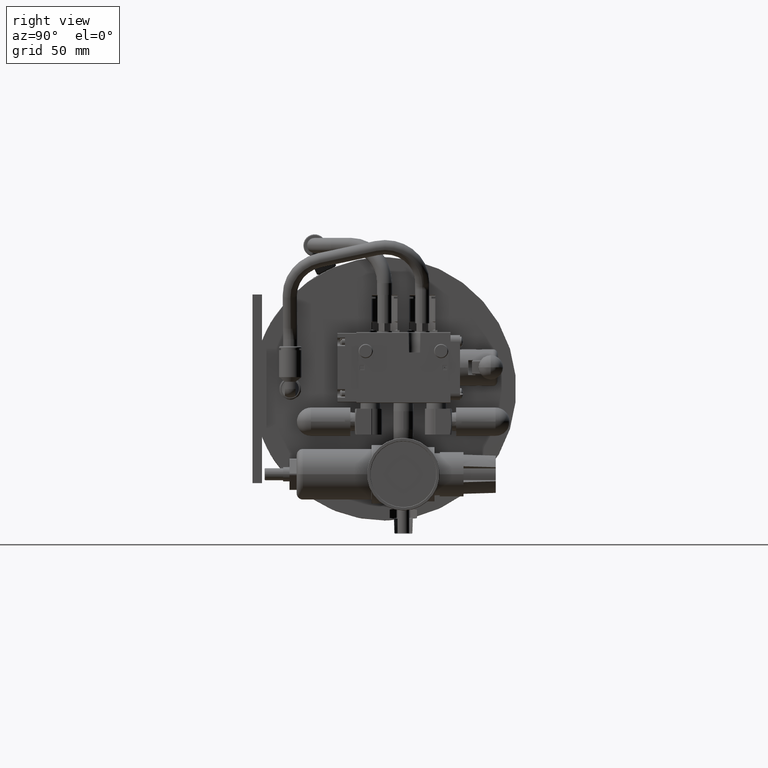
[diagram: clean part render]
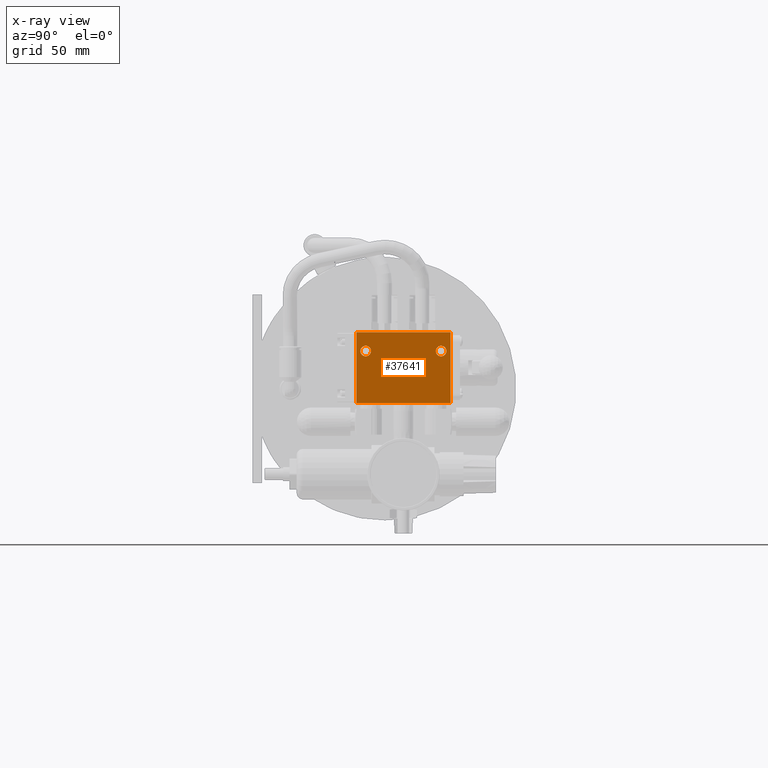
[diagram: x-ray — body ghosted, one internal face saturated and labeled with its STEP entity id]
A machine part, right view, then the same camera in x-ray: the body is ghosted and one INTERNAL B-rep face — a face not visible from any outside direction — is saturated and labeled: STEP entity #37641.
In plain terms, the highlighted planar face has unit normal (1, 0, 0).
Its self-contained STEP definition (entity closure, byte-faithful):
#37438=CARTESIAN_POINT('',(1.505204E2,1.234313E2,-3.81E1));
#37439=CARTESIAN_POINT('',(1.505204E2,1.234344394300E2,-3.767295777419E1));
#37440=CARTESIAN_POINT('',(1.505204E2,1.235727286180E2,-3.687208523860E1));
#37441=CARTESIAN_POINT('',(1.505204E2,1.242070001902E2,-3.576025609678E1));
#37442=CARTESIAN_POINT('',(1.505204E2,1.251756891326E2,-3.494837487599E1));
#37443=CARTESIAN_POINT('',(1.505204E2,1.263660717104E2,-3.451330839834E1));
#37444=CARTESIAN_POINT('',(1.505204E2,1.276329035813E2,-3.451313603785E1));
#37445=CARTESIAN_POINT('',(1.505204E2,1.288234033173E2,-3.494782733448E1));
#37446=CARTESIAN_POINT('',(1.505204E2,1.297923491658E2,-3.575954907939E1));
#37447=CARTESIAN_POINT('',(1.505204E2,1.304269032013E2,-3.687082677093E1));
#37448=CARTESIAN_POINT('',(1.505204E2,1.305654312766E2,-3.767243068959E1));
#37449=CARTESIAN_POINT('',(1.505204E2,1.305687E2,-3.81E1));
#37451=CARTESIAN_POINT('',(1.505204E2,1.305687E2,-3.81E1));
#37452=CARTESIAN_POINT('',(1.505204E2,1.305655605700E2,-3.852704222581E1));
#37453=CARTESIAN_POINT('',(1.505204E2,1.304272713820E2,-3.932791476140E1));
#37454=CARTESIAN_POINT('',(1.505204E2,1.297929998098E2,-4.043974390322E1));
#37455=CARTESIAN_POINT('',(1.505204E2,1.288243108674E2,-4.125162512401E1));
#37456=CARTESIAN_POINT('',(1.505204E2,1.276339282896E2,-4.168669160166E1));
#37457=CARTESIAN_POINT('',(1.505204E2,1.263670964187E2,-4.168686396215E1));
#37458=CARTESIAN_POINT('',(1.505204E2,1.251765966827E2,-4.125217266552E1));
#37459=CARTESIAN_POINT('',(1.505204E2,1.242076508342E2,-4.044045092061E1));
#37460=CARTESIAN_POINT('',(1.505204E2,1.235730967987E2,-3.932917322907E1));
#37461=CARTESIAN_POINT('',(1.505204E2,1.234345687234E2,-3.852756931041E1));
#37462=CARTESIAN_POINT('',(1.505204E2,1.234313E2,-3.81E1));
#37464=CARTESIAN_POINT('',(1.505204E2,7.26313E1,-3.81E1));
#37465=CARTESIAN_POINT('',(1.505204E2,7.263443943001E1,-3.767295777429E1));
#37466=CARTESIAN_POINT('',(1.505204E2,7.277272861791E1,-3.687208523882E1));
#37467=CARTESIAN_POINT('',(1.505204E2,7.340700019017E1,-3.576025609683E1));
#37468=CARTESIAN_POINT('',(1.505204E2,7.437568913254E1,-3.494837487602E1));
#37469=CARTESIAN_POINT('',(1.505204E2,7.556607171033E1,-3.451330839834E1));
#37470=CARTESIAN_POINT('',(1.505204E2,7.683290358128E1,-3.451313603784E1));
#37471=CARTESIAN_POINT('',(1.505204E2,7.802340331742E1,-3.494782733452E1));
#37472=CARTESIAN_POINT('',(1.505204E2,7.899234916581E1,-3.575954907944E1));
#37473=CARTESIAN_POINT('',(1.505204E2,7.962690320136E1,-3.687082677115E1));
#37474=CARTESIAN_POINT('',(1.505204E2,7.976543127668E1,-3.767243068968E1));
#37475=CARTESIAN_POINT('',(1.505204E2,7.97687E1,-3.81E1));
#37477=CARTESIAN_POINT('',(1.505204E2,7.97687E1,-3.81E1));
#37478=CARTESIAN_POINT('',(1.505204E2,7.976556056999E1,-3.852704222571E1));
#37479=CARTESIAN_POINT('',(1.505204E2,7.962727138209E1,-3.932791476118E1));
#37480=CARTESIAN_POINT('',(1.505204E2,7.899299980983E1,-4.043974390317E1));
#37481=CARTESIAN_POINT('',(1.505204E2,7.802431086746E1,-4.125162512398E1));
#37482=CARTESIAN_POINT('',(1.505204E2,7.683392828967E1,-4.168669160166E1));
#37483=CARTESIAN_POINT('',(1.505204E2,7.556709641872E1,-4.168686396216E1));
#37484=CARTESIAN_POINT('',(1.505204E2,7.437659668258E1,-4.125217266548E1));
#37485=CARTESIAN_POINT('',(1.505204E2,7.340765083419E1,-4.044045092056E1));
#37486=CARTESIAN_POINT('',(1.505204E2,7.277309679864E1,-3.932917322885E1));
#37487=CARTESIAN_POINT('',(1.505204E2,7.263456872332E1,-3.852756931032E1));
#37488=CARTESIAN_POINT('',(1.505204E2,7.26313E1,-3.81E1));
#37490=DIRECTION('',(0.E0,1.E0,0.E0));
#37491=VECTOR('',#37490,6.35E1);
#37492=CARTESIAN_POINT('',(1.505204E2,6.985E1,-7.3152E1));
#37493=LINE('',#37492,#37491);
#37494=DIRECTION('',(0.E0,0.E0,-1.E0));
#37495=VECTOR('',#37494,4.7752E1);
#37496=CARTESIAN_POINT('',(1.505204E2,6.985E1,-2.54E1));
#37497=LINE('',#37496,#37495);
#37502=DIRECTION('',(0.E0,-1.E0,0.E0));
#37503=VECTOR('',#37502,6.35E1);
#37504=CARTESIAN_POINT('',(1.505204E2,1.3335E2,-2.54E1));
#37505=LINE('',#37504,#37503);
#37510=DIRECTION('',(0.E0,0.E0,1.E0));
#37511=VECTOR('',#37510,4.7752E1);
#37512=CARTESIAN_POINT('',(1.505204E2,1.3335E2,-7.3152E1));
#37513=LINE('',#37512,#37511);
#37590=VERTEX_POINT('',#37449);
#37591=VERTEX_POINT('',#37438);
#37592=VERTEX_POINT('',#37475);
#37593=VERTEX_POINT('',#37464);
#37598=CARTESIAN_POINT('',(1.505204E2,6.985E1,-7.3152E1));
#37599=CARTESIAN_POINT('',(1.505204E2,1.3335E2,-7.3152E1));
#37600=VERTEX_POINT('',#37598);
#37601=VERTEX_POINT('',#37599);
#37602=CARTESIAN_POINT('',(1.505204E2,1.3335E2,-2.54E1));
#37603=VERTEX_POINT('',#37602);
#37604=CARTESIAN_POINT('',(1.505204E2,6.985E1,-2.54E1));
#37605=VERTEX_POINT('',#37604);
#37614=CARTESIAN_POINT('',(1.505204E2,1.016E2,-4.9276E1));
#37615=DIRECTION('',(1.E0,0.E0,0.E0));
#37616=DIRECTION('',(0.E0,-1.E0,0.E0));
#37617=AXIS2_PLACEMENT_3D('',#37614,#37615,#37616);
#37618=PLANE('',#37617);
#37620=ORIENTED_EDGE('',*,*,#37619,.T.);
#37622=ORIENTED_EDGE('',*,*,#37621,.T.);
#37624=ORIENTED_EDGE('',*,*,#37623,.T.);
#37626=ORIENTED_EDGE('',*,*,#37625,.T.);
#37627=EDGE_LOOP('',(#37620,#37622,#37624,#37626));
#37628=FACE_OUTER_BOUND('',#37627,.F.);
#37630=ORIENTED_EDGE('',*,*,#37629,.T.);
#37632=ORIENTED_EDGE('',*,*,#37631,.T.);
#37633=EDGE_LOOP('',(#37630,#37632));
#37634=FACE_BOUND('',#37633,.F.);
#37636=ORIENTED_EDGE('',*,*,#37635,.T.);
#37638=ORIENTED_EDGE('',*,*,#37637,.T.);
#37639=EDGE_LOOP('',(#37636,#37638));
#37640=FACE_BOUND('',#37639,.F.);
#37641=ADVANCED_FACE('',(#37628,#37634,#37640),#37618,.F.);
#37450=B_SPLINE_CURVE_WITH_KNOTS('',3,(#37438,#37439,#37440,#37441,#37442,
#37443,#37444,#37445,#37446,#37447,#37448,#37449),.UNSPECIFIED.,.F.,.F.,(4,1,1,
1,1,1,1,1,1,4),(0.E0,1.111111111111E-1,2.222222222222E-1,3.333333333333E-1,
4.444444444444E-1,5.555555555556E-1,6.666666666667E-1,7.777777777778E-1,
8.888888888889E-1,1.E0),.UNSPECIFIED.);
#37463=B_SPLINE_CURVE_WITH_KNOTS('',3,(#37451,#37452,#37453,#37454,#37455,
#37456,#37457,#37458,#37459,#37460,#37461,#37462),.UNSPECIFIED.,.F.,.F.,(4,1,1,
1,1,1,1,1,1,4),(0.E0,1.111111111111E-1,2.222222222222E-1,3.333333333333E-1,
4.444444444444E-1,5.555555555556E-1,6.666666666667E-1,7.777777777778E-1,
8.888888888889E-1,1.E0),.UNSPECIFIED.);
#37476=B_SPLINE_CURVE_WITH_KNOTS('',3,(#37464,#37465,#37466,#37467,#37468,
#37469,#37470,#37471,#37472,#37473,#37474,#37475),.UNSPECIFIED.,.F.,.F.,(4,1,1,
1,1,1,1,1,1,4),(0.E0,1.111111111111E-1,2.222222222222E-1,3.333333333333E-1,
4.444444444444E-1,5.555555555556E-1,6.666666666667E-1,7.777777777778E-1,
8.888888888889E-1,1.E0),.UNSPECIFIED.);
#37489=B_SPLINE_CURVE_WITH_KNOTS('',3,(#37477,#37478,#37479,#37480,#37481,
#37482,#37483,#37484,#37485,#37486,#37487,#37488),.UNSPECIFIED.,.F.,.F.,(4,1,1,
1,1,1,1,1,1,4),(0.E0,1.111111111111E-1,2.222222222222E-1,3.333333333333E-1,
4.444444444444E-1,5.555555555556E-1,6.666666666667E-1,7.777777777778E-1,
8.888888888889E-1,1.E0),.UNSPECIFIED.);
#37619=EDGE_CURVE('',#37600,#37601,#37493,.T.);
#37621=EDGE_CURVE('',#37601,#37603,#37513,.T.);
#37623=EDGE_CURVE('',#37603,#37605,#37505,.T.);
#37625=EDGE_CURVE('',#37605,#37600,#37497,.T.);
#37629=EDGE_CURVE('',#37591,#37590,#37450,.T.);
#37631=EDGE_CURVE('',#37590,#37591,#37463,.T.);
#37635=EDGE_CURVE('',#37593,#37592,#37476,.T.);
#37637=EDGE_CURVE('',#37592,#37593,#37489,.T.);